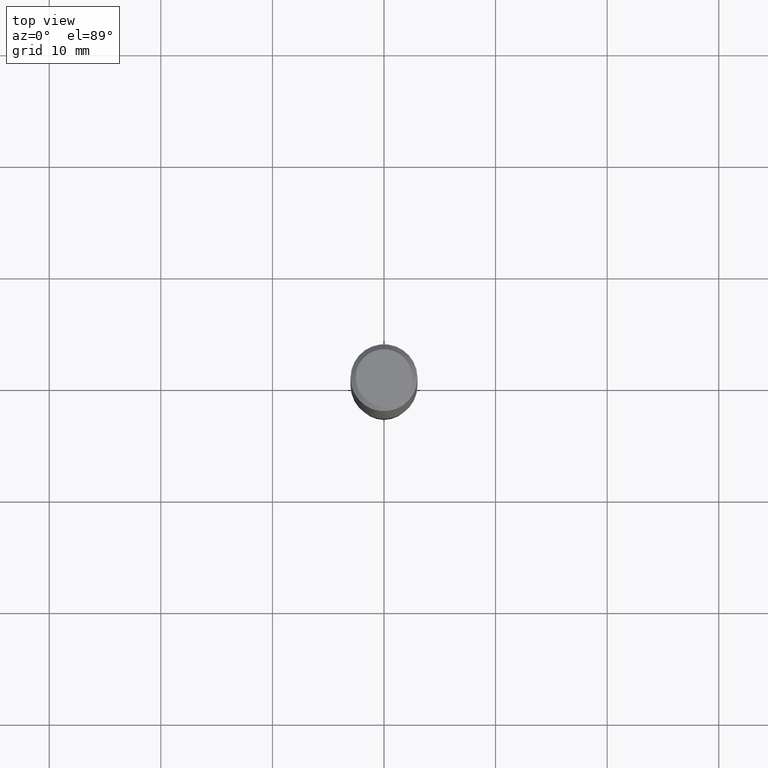
[diagram: clean part render]
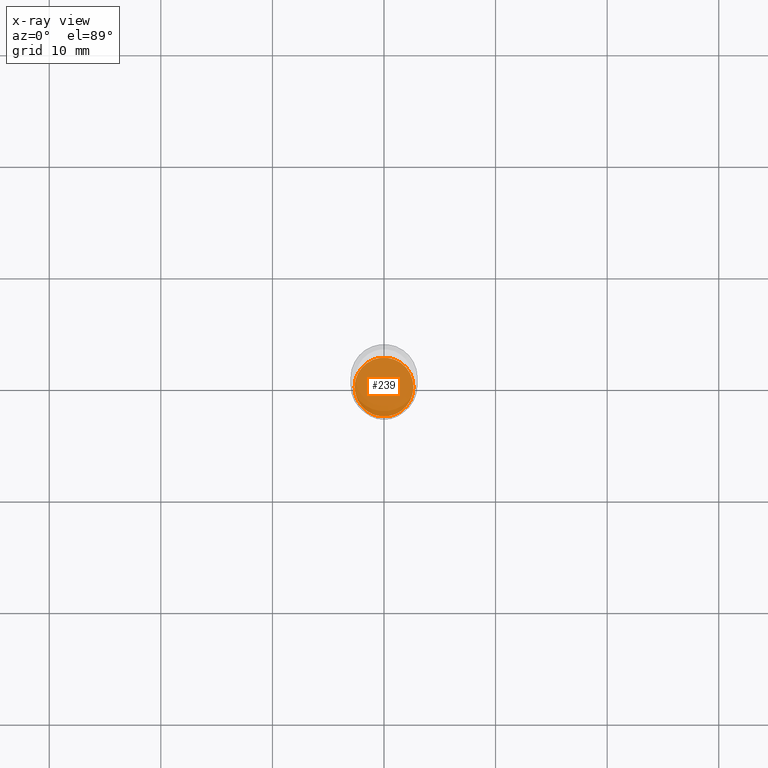
[diagram: x-ray — body ghosted, one internal face saturated and labeled with its STEP entity id]
A machine part, top view, then the same camera in x-ray: the body is ghosted and one INTERNAL B-rep face — a face not visible from any outside direction — is saturated and labeled: STEP entity #239.
In plain terms, the highlighted planar face has unit normal (-0, 0, 1).
Its self-contained STEP definition (entity closure, byte-faithful):
#1 = ORIENTED_EDGE ( 'NONE', *, *, #117, .F. ) ;
#2 = AXIS2_PLACEMENT_3D ( 'NONE', #454, #231, #405 ) ;
#15 = DIRECTION ( 'NONE',  ( -2.445468806185136597E-29, 3.491481338843145583E-15, 1.000000000000000000 ) ) ;
#34 = EDGE_CURVE ( 'NONE', #366, #44, #146, .T. ) ;
#44 = VERTEX_POINT ( 'NONE', #162 ) ;
#87 = AXIS2_PLACEMENT_3D ( 'NONE', #198, #15, #160 ) ;
#117 = EDGE_CURVE ( 'NONE', #44, #366, #449, .T. ) ;
#132 = DIRECTION ( 'NONE',  ( 1.000000000000000000, -6.982962677686268288E-15, 0.000000000000000000 ) ) ;
#135 = CARTESIAN_POINT ( 'NONE',  ( 4.688208248337526170E-29, -6.693518874696195618E-15, -1.917100000000000248 ) ) ;
#146 = CIRCLE ( 'NONE', #87, 0.1038499999999999840 ) ;
#155 = ORIENTED_EDGE ( 'NONE', *, *, #34, .F. ) ;
#160 = DIRECTION ( 'NONE',  ( 1.000000000000000000, -6.982962677686268288E-15, 0.000000000000000000 ) ) ;
#162 = CARTESIAN_POINT ( 'NONE',  ( 0.1038499999999999840, -7.418699548773913444E-15, -1.917100000000000248 ) ) ;
#182 = AXIS2_PLACEMENT_3D ( 'NONE', #135, #320, #132 ) ;
#198 = CARTESIAN_POINT ( 'NONE',  ( 4.688208248337526170E-29, -6.693518874696195618E-15, -1.917100000000000248 ) ) ;
#231 = DIRECTION ( 'NONE',  ( -2.438088387897960049E-29, 3.491481338843145188E-15, 1.000000000000000000 ) ) ;
#239 = ADVANCED_FACE ( 'NONE', ( #450 ), #277, .F. ) ;
#277 = PLANE ( 'NONE',  #2 ) ;
#320 = DIRECTION ( 'NONE',  ( -2.445468806185136597E-29, 3.491481338843145583E-15, 1.000000000000000000 ) ) ;
#366 = VERTEX_POINT ( 'NONE', #428 ) ;
#379 = EDGE_LOOP ( 'NONE', ( #1, #155 ) ) ;
#405 = DIRECTION ( 'NONE',  ( 1.000000000000000000, -6.982962677686265922E-15, 4.876176775795935793E-29 ) ) ;
#428 = CARTESIAN_POINT ( 'NONE',  ( -0.1038499999999999840, -5.952971016435219601E-15, -1.917100000000000248 ) ) ;
#449 = CIRCLE ( 'NONE', #182, 0.1038499999999999840 ) ;
#450 = FACE_OUTER_BOUND ( 'NONE', #379, .T. ) ;
#454 = CARTESIAN_POINT ( 'NONE',  ( 4.688208248337526170E-29, -6.693518874696195618E-15, -1.917100000000000248 ) ) ;